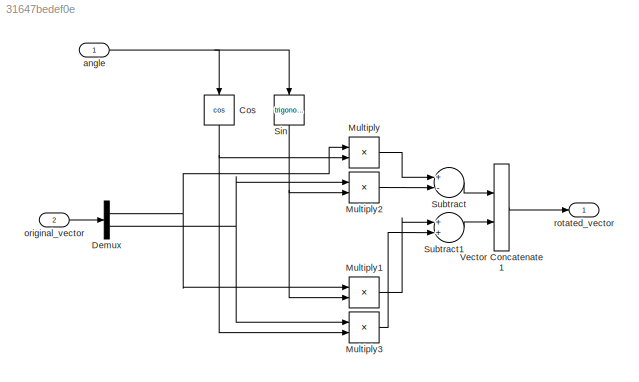
MODEL slx_31647bedef0e
KIND model
CONFIG AbsTol = auto
CONFIG EnableMultiTasking = off
CONFIG FixedStep = auto
CONFIG MaxStep = auto
CONFIG MinStep = auto
CONFIG RelTol = 1e-3
CONFIG SampleTimeConstraint = Unconstrained
CONFIG Solver = VariableStepAuto
CONFIG SolverName = VariableStepAuto
CONFIG StartTime = 0.0
CONFIG StopTime = 10.0
BLOCK [Trigonometry] Cos
  Operator = cos
  Ports = [1, 1]
BLOCK [Demux] Demux
  DisplayOption = bar
  Outputs = 2
  Ports = [1, 2]
BLOCK [Product] Multiply
  InputSameDT = off
  OutDataTypeStr = Inherit: Inherit via internal rule
  Ports = [2, 1]
  RndMeth = Floor
  SaturateOnIntegerOverflow = off
BLOCK [Product] Multiply1
  InputSameDT = off
  OutDataTypeStr = Inherit: Inherit via internal rule
  Ports = [2, 1]
  RndMeth = Floor
  SaturateOnIntegerOverflow = off
BLOCK [Product] Multiply2
  InputSameDT = off
  OutDataTypeStr = Inherit: Inherit via internal rule
  Ports = [2, 1]
  RndMeth = Floor
  SaturateOnIntegerOverflow = off
BLOCK [Product] Multiply3
  InputSameDT = off
  OutDataTypeStr = Inherit: Inherit via internal rule
  Ports = [2, 1]
  RndMeth = Floor
  SaturateOnIntegerOverflow = off
BLOCK [Trigonometry] Sin
  Ports = [1, 1]
BLOCK [Sum] Subtract
  InputSameDT = off
  Inputs = +-
  OutDataTypeStr = Inherit: Inherit via internal rule
  Ports = [2, 1]
  SaturateOnIntegerOverflow = off
BLOCK [Sum] Subtract1
  InputSameDT = off
  OutDataTypeStr = Inherit: Inherit via internal rule
  Ports = [2, 1]
  SaturateOnIntegerOverflow = off
BLOCK [Concatenate] Vector Concatenate1
  Ports = [2, 1]
BLOCK [Inport] angle
  IconDisplay = Port number
  OutDataTypeStr = double
  PortDimensions = 1
  SampleTime = 0
  SamplingMode = Sample based
  SignalType = real
BLOCK [Inport] original_vector
  IconDisplay = Port number
  OutDataTypeStr = double
  Port = 2
  PortDimensions = 2
  SamplingMode = Sample based
  SignalType = real
BLOCK [Outport] rotated_vector 
  IconDisplay = Port number
  OutDataTypeStr = double
  PortDimensions = 2
  SampleTime = 0
  SamplingMode = Sample based
  SignalType = real
NET Cos:1 -> Multiply3:2, Multiply:2
NET Demux:1 -> Multiply1:1, Multiply:1
NET Demux:2 -> Multiply2:1, Multiply3:1
LINE Multiply1:1 -> Subtract1:1
LINE Multiply2:1 -> Subtract:2
LINE Multiply3:1 -> Subtract1:2
LINE Multiply:1 -> Subtract:1
NET Sin:1 -> Multiply1:2, Multiply2:2
LINE Subtract1:1 -> Vector Concatenate1:2
LINE Subtract:1 -> Vector Concatenate1:1
LINE Vector Concatenate1:1 -> rotated_vector :1
NET angle:1 -> Cos:1, Sin:1
LINE original_vector:1 -> Demux:1
note: NET lines group one-source signal fan-out (src -> all destinations, sorted); 1:1 wires keep LINE
